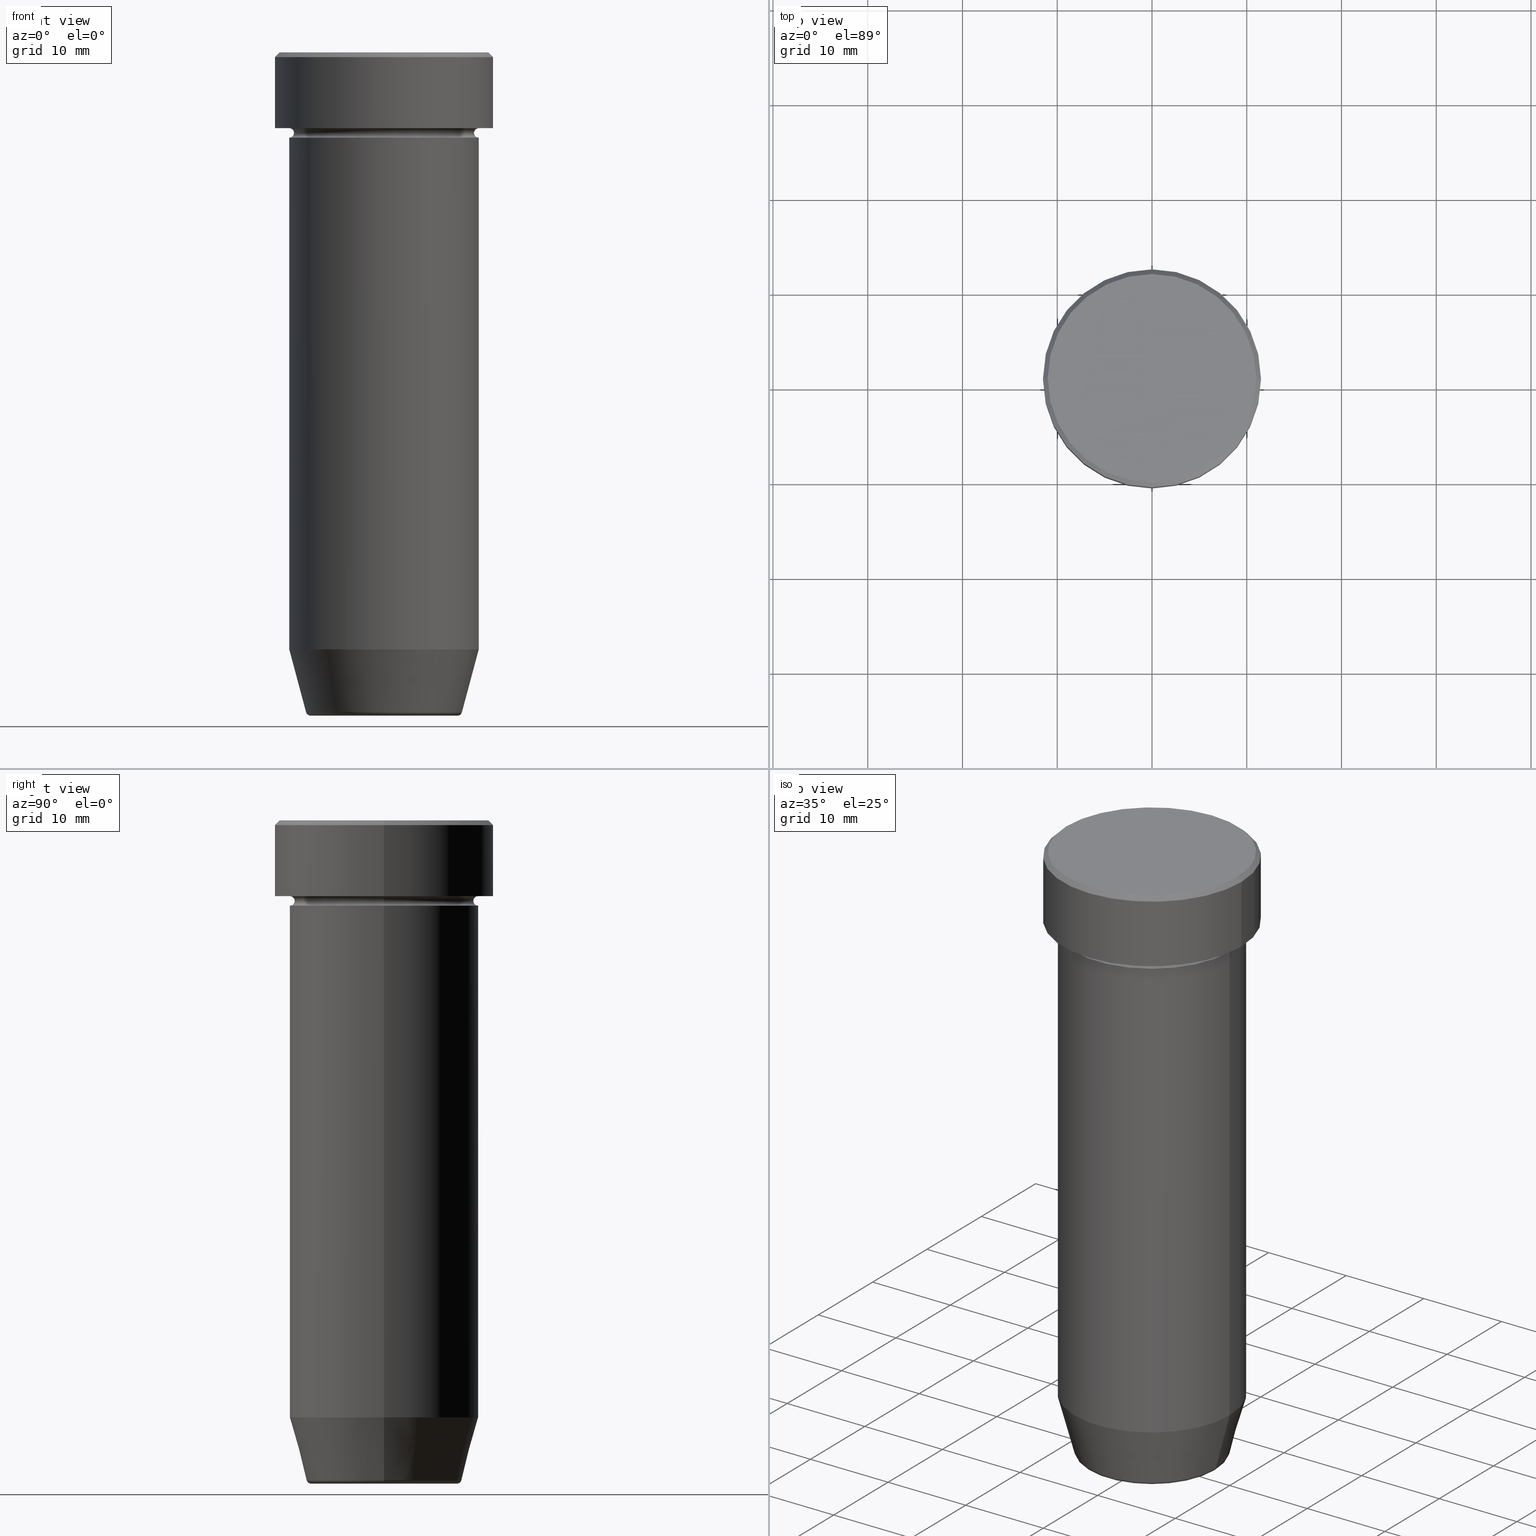
[diagram: canonical four-view strip — front | top / right | iso, engineering-drawing reading convention]
A machine part, canonical four-view strip (front | top / right | iso — engineering-drawing reading convention). The complete STEP part file that produces these views, byte-faithful:
ISO-10303-21;
HEADER;
FILE_DESCRIPTION (( 'STEP AP203' ),
    '1' );
FILE_NAME ('5f95.STEP',
    '2024-01-02T20:54:29',
    ( '' ),
    ( '' ),
    'SwSTEP 2.0',
    'SolidWorks 2019',
    '' );
FILE_SCHEMA (( 'CONFIG_CONTROL_DESIGN' ));
ENDSEC;

DATA;
#1 = ORIENTED_EDGE ( 'NONE', *, *, #95, .F. ) ;
#2 = FACE_OUTER_BOUND ( 'NONE', #146, .T. ) ;
#3 = ADVANCED_BREP_SHAPE_REPRESENTATION ( '5f95', ( #543, #132, #424 ), #329 ) ;
#4 = LINE ( 'NONE', #422, #78 ) ;
#5 = EDGE_CURVE ( 'NONE', #590, #84, #235, .T. ) ;
#6 = DIRECTION ( 'NONE',  ( -0.2588190451025214611, 3.169619151431774186E-17, 0.9659258262890679791 ) ) ;
#7 = VERTEX_POINT ( 'NONE', #190 ) ;
#8 =( NAMED_UNIT ( * ) PLANE_ANGLE_UNIT ( ) SI_UNIT ( $, .RADIAN. ) );
#9 = AXIS2_PLACEMENT_3D ( 'NONE', #441, #306, #312 ) ;
#10 = DIRECTION ( 'NONE',  ( 1.000000000000000000, 0.000000000000000000, 0.000000000000000000 ) ) ;
#11 = EDGE_LOOP ( 'NONE', ( #286, #245 ) ) ;
#12 = VECTOR ( 'NONE', #414, 1000.000000000000000 ) ;
#13 = CARTESIAN_POINT ( 'NONE',  ( -11.50000000000000000, 1.408343819019456176E-15, -0.5000000000000073275 ) ) ;
#14 = DIRECTION ( 'NONE',  ( -1.000000000000000000, 1.224646799147355426E-16, 0.000000000000000000 ) ) ;
#15 = ORIENTED_EDGE ( 'NONE', *, *, #5, .F. ) ;
#16 = CARTESIAN_POINT ( 'NONE',  ( 0.000000000000000000, 0.000000000000000000, -8.500000000000000000 ) ) ;
#17 = DIRECTION ( 'NONE',  ( 0.000000000000000000, 0.000000000000000000, -1.000000000000000000 ) ) ;
#18 = EDGE_LOOP ( 'NONE', ( #531, #405, #430, #513 ) ) ;
#19 = EDGE_CURVE ( 'NONE', #156, #31, #550, .T. ) ;
#20 = COORDINATED_UNIVERSAL_TIME_OFFSET ( 1, 0, .AHEAD. ) ;
#21 = CARTESIAN_POINT ( 'NONE',  ( -10.00000000000000000, 1.224646799147353256E-15, -9.000000000000001776 ) ) ;
#22 = ORIENTED_EDGE ( 'NONE', *, *, #249, .F. ) ;
#23 = APPROVAL ( #478, 'NEUR�EN�' ) ;
#24 = COORDINATED_UNIVERSAL_TIME_OFFSET ( 1, 0, .AHEAD. ) ;
#25 = DIRECTION ( 'NONE',  ( 1.000000000000000000, 0.000000000000000000, 0.000000000000000000 ) ) ;
#26 = ORIENTED_EDGE ( 'NONE', *, *, #496, .F. ) ;
#27 = EDGE_CURVE ( 'NONE', #464, #119, #145, .T. ) ;
#28 = PLANE ( 'NONE',  #371 ) ;
#29 = ORIENTED_EDGE ( 'NONE', *, *, #453, .T. ) ;
#30 = CARTESIAN_POINT ( 'NONE',  ( -8.223655072137185940, 1.115877042642911659E-15, -69.62940952255127058 ) ) ;
#31 = VERTEX_POINT ( 'NONE', #83 ) ;
#32 = AXIS2_PLACEMENT_3D ( 'NONE', #324, #319, #273 ) ;
#33 = CIRCLE ( 'NONE', #517, 11.00000000000000000 ) ;
#34 = DIRECTION ( 'NONE',  ( 1.000000000000000000, 0.000000000000000000, 0.000000000000000000 ) ) ;
#35 = VECTOR ( 'NONE', #276, 1000.000000000000000 ) ;
#36 = CARTESIAN_POINT ( 'NONE',  ( 10.00000000000000000, 0.000000000000000000, -8.500000000000000000 ) ) ;
#37 = ORIENTED_EDGE ( 'NONE', *, *, #437, .T. ) ;
#38 = ORIENTED_EDGE ( 'NONE', *, *, #27, .T. ) ;
#39 = ADVANCED_FACE ( 'NONE', ( #2 ), #126, .T. ) ;
#40 = CARTESIAN_POINT ( 'NONE',  ( -10.00000000000000000, 1.224646799147353256E-15, 0.000000000000000000 ) ) ;
#41 = AXIS2_PLACEMENT_3D ( 'NONE', #187, #127, #228 ) ;
#42 = DIRECTION ( 'NONE',  ( -0.000000000000000000, -0.000000000000000000, 1.000000000000000000 ) ) ;
#43 = ADVANCED_FACE ( 'NONE', ( #458 ), #427, .F. ) ;
#44 = DIRECTION ( 'NONE',  ( 1.000000000000000000, 0.000000000000000000, 0.000000000000000000 ) ) ;
#45 = CARTESIAN_POINT ( 'NONE',  ( 0.000000000000000000, 0.000000000000000000, -70.00000000000000000 ) ) ;
#46 = AXIS2_PLACEMENT_3D ( 'NONE', #165, #123, #401 ) ;
#47 = CIRCLE ( 'NONE', #41, 9.500000000000000000 ) ;
#48 = LINE ( 'NONE', #40, #12 ) ;
#49 = CARTESIAN_POINT ( 'NONE',  ( 0.000000000000000000, 0.000000000000000000, -8.000000000000000000 ) ) ;
#50 = EDGE_LOOP ( 'NONE', ( #162, #314, #568, #510 ) ) ;
#51 = LINE ( 'NONE', #509, #582 ) ;
#52 = ORIENTED_EDGE ( 'NONE', *, *, #593, .T. ) ;
#53 = LOCAL_TIME ( 21, 54, 29.00000000000000000, #354 ) ;
#54 = CIRCLE ( 'NONE', #471, 11.00000000000000000 ) ;
#55 = CARTESIAN_POINT ( 'NONE',  ( 8.223655072137185940, 0.000000000000000000, -69.62940952255127058 ) ) ;
#56 = ORIENTED_EDGE ( 'NONE', *, *, #224, .F. ) ;
#57 = CARTESIAN_POINT ( 'NONE',  ( 0.000000000000000000, 0.000000000000000000, -22.00000000000000000 ) ) ;
#58 = ADVANCED_FACE ( 'NONE', ( #553 ), #116, .T. ) ;
#59 = ORIENTED_EDGE ( 'NONE', *, *, #238, .F. ) ;
#60 = APPROVAL_STATUS ( 'not_yet_approved' ) ;
#61 = CARTESIAN_POINT ( 'NONE',  ( 0.000000000000000000, 2.449293598294708880E-15, -70.00000000000000000 ) ) ;
#62 = VERTEX_POINT ( 'NONE', #315 ) ;
#63 = CARTESIAN_POINT ( 'NONE',  ( 10.00000000000000000, 1.224646799147353256E-15, -8.000000000000000000 ) ) ;
#64 = LOCAL_TIME ( 21, 54, 29.00000000000000000, #24 ) ;
#65 = AXIS2_PLACEMENT_3D ( 'NONE', #268, #596, #180 ) ;
#66 = ORIENTED_EDGE ( 'NONE', *, *, #270, .T. ) ;
#67 = VECTOR ( 'NONE', #417, 1000.000000000000000 ) ;
#68 = APPROVAL ( #588, 'NEUR�EN�' ) ;
#69 = CARTESIAN_POINT ( 'NONE',  ( 0.000000000000000000, 0.000000000000000000, -0.5000000000000073275 ) ) ;
#70 = EDGE_LOOP ( 'NONE', ( #591, #105 ) ) ;
#71 = COORDINATED_UNIVERSAL_TIME_OFFSET ( 1, 0, .AHEAD. ) ;
#72 = PRODUCT_RELATED_PRODUCT_CATEGORY ( 'detail', '', ( #402 ) ) ;
#73 = CYLINDRICAL_SURFACE ( 'NONE', #569, 10.00000000000000000 ) ;
#74 = CIRCLE ( 'NONE', #500, 0.5000000000000004441 ) ;
#75 = ORIENTED_EDGE ( 'NONE', *, *, #19, .F. ) ;
#76 = DATE_AND_TIME ( #488, #53 ) ;
#77 = DIRECTION ( 'NONE',  ( -1.000000000000000000, 0.000000000000000000, 0.000000000000000000 ) ) ;
#78 = VECTOR ( 'NONE', #191, 1000.000000000000000 ) ;
#79 = CIRCLE ( 'NONE', #426, 8.223655072137185940 ) ;
#80 = DIRECTION ( 'NONE',  ( 1.000000000000000000, 0.000000000000000000, 0.000000000000000000 ) ) ;
#81 = ORIENTED_EDGE ( 'NONE', *, *, #87, .T. ) ;
#82 = EDGE_CURVE ( 'NONE', #119, #464, #456, .T. ) ;
#83 = CARTESIAN_POINT ( 'NONE',  ( -9.999999999999998224, 1.224646799147353059E-15, -63.00000000000000000 ) ) ;
#84 = VERTEX_POINT ( 'NONE', #452 ) ;
#85 = CC_DESIGN_APPROVAL ( #587, ( #527 ) ) ;
#86 = VECTOR ( 'NONE', #508, 1000.000000000000000 ) ;
#87 = EDGE_CURVE ( 'NONE', #590, #248, #321, .T. ) ;
#88 = CARTESIAN_POINT ( 'NONE',  ( 0.000000000000000000, 0.000000000000000000, -69.50000000000000000 ) ) ;
#89 = CARTESIAN_POINT ( 'NONE',  ( 0.000000000000000000, 0.000000000000000000, -63.00000000000000000 ) ) ;
#90 = DIRECTION ( 'NONE',  ( -1.000000000000000000, 0.000000000000000000, 0.000000000000000000 ) ) ;
#91 = CARTESIAN_POINT ( 'NONE',  ( 0.000000000000000000, 0.000000000000000000, -22.00000000000000000 ) ) ;
#92 = CONICAL_SURFACE ( 'NONE', #320, 11.00000000000000000, 0.7853981633974415066 ) ;
#93 = CARTESIAN_POINT ( 'NONE',  ( 0.000000000000000000, 0.000000000000000000, 0.000000000000000000 ) ) ;
#94 = CLOSED_SHELL ( 'NONE', ( #581, #481, #598, #429, #294, #129, #419, #141, #376, #39, #505, #43, #304 ) ) ;
#95 = EDGE_CURVE ( 'NONE', #156, #464, #229, .T. ) ;
#96 = CIRCLE ( 'NONE', #547, 7.740692158992650285 ) ;
#97 = CARTESIAN_POINT ( 'NONE',  ( -10.00000000000000000, 0.000000000000000000, -8.000000000000000000 ) ) ;
#98 = LINE ( 'NONE', #192, #540 ) ;
#99 = CC_DESIGN_DATE_AND_TIME_ASSIGNMENT ( #109, #296, ( #287 ) ) ;
#100 = FACE_OUTER_BOUND ( 'NONE', #395, .T. ) ;
#101 = ORIENTED_EDGE ( 'NONE', *, *, #316, .T. ) ;
#102 = EDGE_CURVE ( 'NONE', #444, #149, #48, .T. ) ;
#103 = CIRCLE ( 'NONE', #340, 11.50000000000000000 ) ;
#104 = DIRECTION ( 'NONE',  ( -0.000000000000000000, -0.000000000000000000, 1.000000000000000000 ) ) ;
#105 = ORIENTED_EDGE ( 'NONE', *, *, #233, .F. ) ;
#106 = DESIGN_CONTEXT ( 'detailed design', #388, 'design' ) ;
#107 = CYLINDRICAL_SURFACE ( 'NONE', #360, 11.50000000000000000 ) ;
#108 = ORIENTED_EDGE ( 'NONE', *, *, #437, .F. ) ;
#109 = DATE_AND_TIME ( #204, #416 ) ;
#110 = FACE_BOUND ( 'NONE', #386, .T. ) ;
#111 = ORIENTED_EDGE ( 'NONE', *, *, #361, .F. ) ;
#112 = EDGE_CURVE ( 'NONE', #240, #356, #96, .T. ) ;
#113 = DIRECTION ( 'NONE',  ( 1.000000000000000000, 0.000000000000000000, 0.000000000000000000 ) ) ;
#114 = CIRCLE ( 'NONE', #548, 0.4999999999999995559 ) ;
#115 = ORIENTED_EDGE ( 'NONE', *, *, #522, .F. ) ;
#116 = TOROIDAL_SURFACE ( 'NONE', #584, 7.740692158992650285, 0.5000000000000000000 ) ;
#117 = PERSON_AND_ORGANIZATION ( #575, #580 ) ;
#118 = CARTESIAN_POINT ( 'NONE',  ( 0.000000000000000000, 0.000000000000000000, 0.000000000000000000 ) ) ;
#119 = VERTEX_POINT ( 'NONE', #410 ) ;
#120 = CARTESIAN_POINT ( 'NONE',  ( 0.000000000000000000, 0.000000000000000000, -9.000000000000001776 ) ) ;
#121 = EDGE_LOOP ( 'NONE', ( #108, #197, #450, #345 ) ) ;
#122 = ADVANCED_FACE ( 'NONE', ( #138 ), #597, .T. ) ;
#123 = DIRECTION ( 'NONE',  ( -1.224646799147353207E-16, 1.000000000000000000, 0.000000000000000000 ) ) ;
#124 = ORIENTED_EDGE ( 'NONE', *, *, #150, .F. ) ;
#125 = CIRCLE ( 'NONE', #436, 10.00000000000000000 ) ;
#126 = CYLINDRICAL_SURFACE ( 'NONE', #472, 10.00000000000000000 ) ;
#127 = DIRECTION ( 'NONE',  ( -0.000000000000000000, -0.000000000000000000, 1.000000000000000000 ) ) ;
#128 = CARTESIAN_POINT ( 'NONE',  ( 0.000000000000000000, 0.000000000000000000, 0.000000000000000000 ) ) ;
#129 = ADVANCED_FACE ( 'NONE', ( #231 ), #325, .T. ) ;
#130 = FACE_OUTER_BOUND ( 'NONE', #487, .T. ) ;
#131 = DIRECTION ( 'NONE',  ( 0.000000000000000000, 0.000000000000000000, -1.000000000000000000 ) ) ;
#132 = MANIFOLD_SOLID_BREP ( 'Zaoblit4', #331 ) ;
#133 = APPROVAL_PERSON_ORGANIZATION ( #160, #23, #250 ) ;
#134 = AXIS2_PLACEMENT_3D ( 'NONE', #394, #158, #80 ) ;
#135 = CC_DESIGN_PERSON_AND_ORGANIZATION_ASSIGNMENT ( #529, #260, ( #527 ) ) ;
#136 = DIRECTION ( 'NONE',  ( 0.000000000000000000, 0.000000000000000000, -1.000000000000000000 ) ) ;
#137 = AXIS2_PLACEMENT_3D ( 'NONE', #373, #42, #549 ) ;
#138 = FACE_OUTER_BOUND ( 'NONE', #121, .T. ) ;
#139 = DIRECTION ( 'NONE',  ( -0.000000000000000000, -0.000000000000000000, 1.000000000000000000 ) ) ;
#140 = CARTESIAN_POINT ( 'NONE',  ( 11.50000000000000000, 0.000000000000000000, -8.000000000000000000 ) ) ;
#141 = ADVANCED_FACE ( 'NONE', ( #179 ), #545, .T. ) ;
#142 = DIRECTION ( 'NONE',  ( 0.000000000000000000, 0.000000000000000000, -1.000000000000000000 ) ) ;
#143 = AXIS2_PLACEMENT_3D ( 'NONE', #525, #391, #534 ) ;
#144 = CARTESIAN_POINT ( 'NONE',  ( 0.000000000000000000, 0.000000000000000000, -8.000000000000000000 ) ) ;
#145 = CIRCLE ( 'NONE', #483, 10.00000000000000000 ) ;
#146 = EDGE_LOOP ( 'NONE', ( #390, #418, #211, #494 ) ) ;
#147 =( LENGTH_UNIT ( ) NAMED_UNIT ( * ) SI_UNIT ( .MILLI., .METRE. ) );
#148 = DIRECTION ( 'NONE',  ( -0.000000000000000000, -0.000000000000000000, 1.000000000000000000 ) ) ;
#149 = VERTEX_POINT ( 'NONE', #21 ) ;
#150 = EDGE_CURVE ( 'NONE', #356, #240, #288, .T. ) ;
#151 = PLANE ( 'NONE',  #459 ) ;
#152 = ORIENTED_EDGE ( 'NONE', *, *, #349, .T. ) ;
#153 = CC_DESIGN_APPROVAL ( #23, ( #287 ) ) ;
#154 = CIRCLE ( 'NONE', #205, 10.00000000000000000 ) ;
#155 = DIRECTION ( 'NONE',  ( 0.000000000000000000, -1.000000000000000000, 0.000000000000000000 ) ) ;
#156 = VERTEX_POINT ( 'NONE', #431 ) ;
#157 = CARTESIAN_POINT ( 'NONE',  ( 0.000000000000000000, 0.000000000000000000, 0.000000000000000000 ) ) ;
#158 = DIRECTION ( 'NONE',  ( -0.000000000000000000, -0.000000000000000000, 1.000000000000000000 ) ) ;
#159 = ORIENTED_EDGE ( 'NONE', *, *, #224, .T. ) ;
#160 = PERSON_AND_ORGANIZATION ( #575, #580 ) ;
#161 = DIRECTION ( 'NONE',  ( -0.000000000000000000, -0.000000000000000000, 1.000000000000000000 ) ) ;
#162 = ORIENTED_EDGE ( 'NONE', *, *, #209, .F. ) ;
#163 = DIRECTION ( 'NONE',  ( 0.000000000000000000, 0.000000000000000000, 1.000000000000000000 ) ) ;
#164 = VECTOR ( 'NONE', #326, 1000.000000000000114 ) ;
#165 = CARTESIAN_POINT ( 'NONE',  ( 10.00000000000000000, 1.224646799147353256E-15, -8.500000000000000000 ) ) ;
#166 = CC_DESIGN_SECURITY_CLASSIFICATION ( #287, ( #527 ) ) ;
#167 = AXIS2_PLACEMENT_3D ( 'NONE', #120, #310, #585 ) ;
#168 = ORIENTED_EDGE ( 'NONE', *, *, #172, .T. ) ;
#169 = APPLICATION_PROTOCOL_DEFINITION ( 'international standard', 'config_control_design', 1994, #388 ) ;
#170 = DIRECTION ( 'NONE',  ( 1.000000000000000000, 0.000000000000000000, 0.000000000000000000 ) ) ;
#171 = EDGE_LOOP ( 'NONE', ( #334, #366, #26, #255 ) ) ;
#172 = EDGE_CURVE ( 'NONE', #336, #31, #564, .T. ) ;
#173 = DIRECTION ( 'NONE',  ( 0.000000000000000000, 0.000000000000000000, -1.000000000000000000 ) ) ;
#174 = ORIENTED_EDGE ( 'NONE', *, *, #453, .F. ) ;
#175 = DIRECTION ( 'NONE',  ( -0.000000000000000000, -0.000000000000000000, 1.000000000000000000 ) ) ;
#176 = VERTEX_POINT ( 'NONE', #55 ) ;
#177 = DIRECTION ( 'NONE',  ( 1.224646799147353207E-16, 1.000000000000000000, 0.000000000000000000 ) ) ;
#178 = PRODUCT_DEFINITION ( 'NEZN�M�', '', #527, #106 ) ;
#179 = FACE_OUTER_BOUND ( 'NONE', #491, .T. ) ;
#180 = DIRECTION ( 'NONE',  ( 1.000000000000000000, 0.000000000000000000, 0.000000000000000000 ) ) ;
#181 = CARTESIAN_POINT ( 'NONE',  ( 11.50000000000000000, 0.000000000000000000, 0.000000000000000000 ) ) ;
#182 = SHAPE_DEFINITION_REPRESENTATION ( #308, #3 ) ;
#183 = CARTESIAN_POINT ( 'NONE',  ( 0.000000000000000000, 0.000000000000000000, 0.000000000000000000 ) ) ;
#184 = DIRECTION ( 'NONE',  ( -0.000000000000000000, -0.000000000000000000, 1.000000000000000000 ) ) ;
#185 = LOCAL_TIME ( 21, 54, 29.00000000000000000, #524 ) ;
#186 = AXIS2_PLACEMENT_3D ( 'NONE', #206, #173, #449 ) ;
#187 = CARTESIAN_POINT ( 'NONE',  ( 0.000000000000000000, 0.000000000000000000, -8.500000000000000000 ) ) ;
#188 = DIRECTION ( 'NONE',  ( -0.000000000000000000, -0.000000000000000000, 1.000000000000000000 ) ) ;
#189 = ADVANCED_FACE ( 'NONE', ( #434 ), #151, .F. ) ;
#190 = CARTESIAN_POINT ( 'NONE',  ( 10.00000000000000000, 0.000000000000000000, -22.00000000000000000 ) ) ;
#191 = DIRECTION ( 'NONE',  ( -0.000000000000000000, -0.000000000000000000, 1.000000000000000000 ) ) ;
#192 = CARTESIAN_POINT ( 'NONE',  ( -11.50000000000000000, 1.408343819019456176E-15, 0.000000000000000000 ) ) ;
#193 = AXIS2_PLACEMENT_3D ( 'NONE', #16, #284, #465 ) ;
#194 = CIRCLE ( 'NONE', #301, 10.00000000000000000 ) ;
#195 = FACE_OUTER_BOUND ( 'NONE', #379, .T. ) ;
#196 = EDGE_CURVE ( 'NONE', #248, #572, #98, .T. ) ;
#197 = ORIENTED_EDGE ( 'NONE', *, *, #328, .T. ) ;
#198 = FACE_OUTER_BOUND ( 'NONE', #253, .T. ) ;
#199 = LINE ( 'NONE', #239, #86 ) ;
#200 = EDGE_LOOP ( 'NONE', ( #115, #470, #339, #425 ) ) ;
#201 = PLANE ( 'NONE',  #556 ) ;
#202 = EDGE_LOOP ( 'NONE', ( #22, #111, #159, #526 ) ) ;
#203 = CC_DESIGN_APPROVAL ( #68, ( #178 ) ) ;
#204 = CALENDAR_DATE ( 2024, 2, 1 ) ;
#205 = AXIS2_PLACEMENT_3D ( 'NONE', #252, #521, #302 ) ;
#206 = CARTESIAN_POINT ( 'NONE',  ( 0.000000000000000000, 0.000000000000000000, -0.5000000000000073275 ) ) ;
#207 = ORIENTED_EDGE ( 'NONE', *, *, #367, .F. ) ;
#208 = PERSON_AND_ORGANIZATION ( #575, #580 ) ;
#209 = EDGE_CURVE ( 'NONE', #356, #336, #114, .T. ) ;
#210 = FACE_OUTER_BOUND ( 'NONE', #171, .T. ) ;
#211 = ORIENTED_EDGE ( 'NONE', *, *, #570, .T. ) ;
#212 = CC_DESIGN_PERSON_AND_ORGANIZATION_ASSIGNMENT ( #305, #520, ( #287 ) ) ;
#213 = DIRECTION ( 'NONE',  ( -0.000000000000000000, -0.000000000000000000, 1.000000000000000000 ) ) ;
#214 = EDGE_LOOP ( 'NONE', ( #559, #579, #562, #403 ) ) ;
#215 = PERSON_AND_ORGANIZATION ( #575, #580 ) ;
#216 = UNCERTAINTY_MEASURE_WITH_UNIT (LENGTH_MEASURE( 1.000000000000000082E-05 ), #147, 'distance_accuracy_value', 'NONE');
#217 = CARTESIAN_POINT ( 'NONE',  ( -10.00000000000000000, 1.224646799147353256E-15, -22.00000000000000000 ) ) ;
#218 = CIRCLE ( 'NONE', #143, 0.5000000000000004441 ) ;
#219 = ORIENTED_EDGE ( 'NONE', *, *, #150, .T. ) ;
#220 = EDGE_CURVE ( 'NONE', #7, #444, #194, .T. ) ;
#221 = DATE_AND_TIME ( #357, #185 ) ;
#222 = ORIENTED_EDGE ( 'NONE', *, *, #249, .T. ) ;
#223 = DIRECTION ( 'NONE',  ( -0.000000000000000000, -0.000000000000000000, 1.000000000000000000 ) ) ;
#224 = EDGE_CURVE ( 'NONE', #62, #572, #199, .T. ) ;
#225 = DIRECTION ( 'NONE',  ( 1.000000000000000000, 0.000000000000000000, 0.000000000000000000 ) ) ;
#226 = AXIS2_PLACEMENT_3D ( 'NONE', #36, #589, #544 ) ;
#227 = AXIS2_PLACEMENT_3D ( 'NONE', #451, #175, #365 ) ;
#228 = DIRECTION ( 'NONE',  ( 1.000000000000000000, 0.000000000000000000, 0.000000000000000000 ) ) ;
#229 = LINE ( 'NONE', #269, #35 ) ;
#230 = CARTESIAN_POINT ( 'NONE',  ( 0.000000000000000000, 0.000000000000000000, -8.500000000000000000 ) ) ;
#231 = FACE_OUTER_BOUND ( 'NONE', #70, .T. ) ;
#232 = AXIS2_PLACEMENT_3D ( 'NONE', #506, #461, #595 ) ;
#233 = EDGE_CURVE ( 'NONE', #444, #7, #272, .T. ) ;
#234 = VECTOR ( 'NONE', #443, 1000.000000000000000 ) ;
#235 = LINE ( 'NONE', #181, #67 ) ;
#236 = DIRECTION ( 'NONE',  ( -0.000000000000000000, -0.000000000000000000, 1.000000000000000000 ) ) ;
#237 = VERTEX_POINT ( 'NONE', #423 ) ;
#238 = EDGE_CURVE ( 'NONE', #240, #176, #277, .T. ) ;
#239 = CARTESIAN_POINT ( 'NONE',  ( -11.00000000000000000, 0.000000000000000000, 0.000000000000000000 ) ) ;
#240 = VERTEX_POINT ( 'NONE', #377 ) ;
#241 = TOROIDAL_SURFACE ( 'NONE', #134, 7.740692158992650285, 0.5000000000000000000 ) ;
#242 = DIRECTION ( 'NONE',  ( -1.000000000000000000, 0.000000000000000000, -0.000000000000000000 ) ) ;
#243 = ORIENTED_EDGE ( 'NONE', *, *, #342, .T. ) ;
#244 = DIRECTION ( 'NONE',  ( 0.000000000000000000, 0.000000000000000000, -1.000000000000000000 ) ) ;
#245 = ORIENTED_EDGE ( 'NONE', *, *, #387, .T. ) ;
#246 = APPROVAL_DATE_TIME ( #76, #587 ) ;
#247 = FACE_OUTER_BOUND ( 'NONE', #467, .T. ) ;
#248 = VERTEX_POINT ( 'NONE', #382 ) ;
#249 = EDGE_CURVE ( 'NONE', #311, #84, #51, .T. ) ;
#250 = APPROVAL_ROLE ( '' ) ;
#251 = CIRCLE ( 'NONE', #167, 10.00000000000000000 ) ;
#252 = CARTESIAN_POINT ( 'NONE',  ( 0.000000000000000000, 0.000000000000000000, -8.000000000000000000 ) ) ;
#253 = EDGE_LOOP ( 'NONE', ( #442, #222, #415, #56 ) ) ;
#254 = CARTESIAN_POINT ( 'NONE',  ( -7.740692158992650285, 9.775343368540031246E-16, -70.00000000000000000 ) ) ;
#255 = ORIENTED_EDGE ( 'NONE', *, *, #570, .F. ) ;
#256 = APPROVAL_ROLE ( '' ) ;
#257 = ADVANCED_FACE ( 'NONE', ( #473 ), #201, .F. ) ;
#258 = CARTESIAN_POINT ( 'NONE',  ( 0.000000000000000000, 0.000000000000000000, 0.000000000000000000 ) ) ;
#259 = ORIENTED_EDGE ( 'NONE', *, *, #413, .T. ) ;
#260 = PERSON_AND_ORGANIZATION_ROLE ( 'creator' ) ;
#261 = VECTOR ( 'NONE', #6, 1000.000000000000114 ) ;
#262 = DIRECTION ( 'NONE',  ( -0.000000000000000000, -0.000000000000000000, 1.000000000000000000 ) ) ;
#263 = AXIS2_PLACEMENT_3D ( 'NONE', #69, #438, #170 ) ;
#264 = ORIENTED_EDGE ( 'NONE', *, *, #270, .F. ) ;
#265 = CIRCLE ( 'NONE', #227, 9.500000000000000000 ) ;
#266 = DIRECTION ( 'NONE',  ( 1.000000000000000000, 0.000000000000000000, 0.000000000000000000 ) ) ;
#267 = ORIENTED_EDGE ( 'NONE', *, *, #87, .F. ) ;
#268 = CARTESIAN_POINT ( 'NONE',  ( 0.000000000000000000, 0.000000000000000000, -8.500000000000000000 ) ) ;
#269 = CARTESIAN_POINT ( 'NONE',  ( 9.999999999999998224, 0.000000000000000000, 0.000000000000000000 ) ) ;
#270 = EDGE_CURVE ( 'NONE', #248, #590, #103, .T. ) ;
#271 = DIRECTION ( 'NONE',  ( -0.000000000000000000, -0.000000000000000000, 1.000000000000000000 ) ) ;
#272 = CIRCLE ( 'NONE', #501, 10.00000000000000000 ) ;
#273 = DIRECTION ( 'NONE',  ( 1.000000000000000000, 0.000000000000000000, 0.000000000000000000 ) ) ;
#274 = ADVANCED_FACE ( 'NONE', ( #195 ), #409, .T. ) ;
#275 = CYLINDRICAL_SURFACE ( 'NONE', #460, 9.999999999999998224 ) ;
#276 = DIRECTION ( 'NONE',  ( -0.000000000000000000, -0.000000000000000000, 1.000000000000000000 ) ) ;
#277 = CIRCLE ( 'NONE', #313, 0.5000000000000004441 ) ;
#278 = CARTESIAN_POINT ( 'NONE',  ( 11.00000000000000000, 1.377727649040772389E-15, 0.000000000000000000 ) ) ;
#279 = EDGE_LOOP ( 'NONE', ( #38, #565 ) ) ;
#280 = CC_DESIGN_PERSON_AND_ORGANIZATION_ASSIGNMENT ( #215, #536, ( #402 ) ) ;
#281 = CARTESIAN_POINT ( 'NONE',  ( 0.000000000000000000, 0.000000000000000000, 0.000000000000000000 ) ) ;
#282 = CARTESIAN_POINT ( 'NONE',  ( -8.124355652982131915, 9.949466145559272639E-16, -70.00000000000000000 ) ) ;
#283 = ORIENTED_EDGE ( 'NONE', *, *, #196, .F. ) ;
#284 = DIRECTION ( 'NONE',  ( -0.000000000000000000, -0.000000000000000000, 1.000000000000000000 ) ) ;
#285 = DIRECTION ( 'NONE',  ( 0.000000000000000000, 0.000000000000000000, -1.000000000000000000 ) ) ;
#286 = ORIENTED_EDGE ( 'NONE', *, *, #361, .T. ) ;
#287 = SECURITY_CLASSIFICATION ( '', '', #482 ) ;
#288 = CIRCLE ( 'NONE', #515, 7.740692158992650285 ) ;
#289 = CIRCLE ( 'NONE', #186, 11.50000000000000000 ) ;
#290 = DIRECTION ( 'NONE',  ( 0.7071067811865426878, 8.659560562354874926E-17, -0.7071067811865524577 ) ) ;
#291 = AXIS2_PLACEMENT_3D ( 'NONE', #455, #184, #546 ) ;
#292 = ORIENTED_EDGE ( 'NONE', *, *, #209, .T. ) ;
#293 = DIRECTION ( 'NONE',  ( -0.000000000000000000, -0.000000000000000000, 1.000000000000000000 ) ) ;
#294 = ADVANCED_FACE ( 'NONE', ( #247 ), #107, .T. ) ;
#295 = ORIENTED_EDGE ( 'NONE', *, *, #413, .F. ) ;
#296 = DATE_TIME_ROLE ( 'classification_date' ) ;
#297 = PLANE ( 'NONE',  #9 ) ;
#298 = ORIENTED_EDGE ( 'NONE', *, *, #393, .T. ) ;
#299 = APPROVAL_PERSON_ORGANIZATION ( #440, #587, #256 ) ;
#300 = PERSON_AND_ORGANIZATION ( #575, #580 ) ;
#301 = AXIS2_PLACEMENT_3D ( 'NONE', #57, #293, #374 ) ;
#302 = DIRECTION ( 'NONE',  ( -1.000000000000000000, 0.000000000000000000, 0.000000000000000000 ) ) ;
#303 = EDGE_LOOP ( 'NONE', ( #307, #219 ) ) ;
#304 = ADVANCED_FACE ( 'NONE', ( #335 ), #92, .T. ) ;
#305 = PERSON_AND_ORGANIZATION ( #575, #580 ) ;
#306 = DIRECTION ( 'NONE',  ( 0.000000000000000000, 0.000000000000000000, -1.000000000000000000 ) ) ;
#307 = ORIENTED_EDGE ( 'NONE', *, *, #112, .T. ) ;
#308 = PRODUCT_DEFINITION_SHAPE ( 'NONE', 'NONE',  #178 ) ;
#309 = APPROVAL_DATE_TIME ( #583, #68 ) ;
#310 = DIRECTION ( 'NONE',  ( -0.000000000000000000, -0.000000000000000000, 1.000000000000000000 ) ) ;
#311 = VERTEX_POINT ( 'NONE', #278 ) ;
#312 = DIRECTION ( 'NONE',  ( -1.000000000000000000, 0.000000000000000000, -0.000000000000000000 ) ) ;
#313 = AXIS2_PLACEMENT_3D ( 'NONE', #463, #155, #17 ) ;
#314 = ORIENTED_EDGE ( 'NONE', *, *, #112, .F. ) ;
#315 = CARTESIAN_POINT ( 'NONE',  ( -11.00000000000000000, 0.000000000000000000, 0.000000000000000000 ) ) ;
#316 = EDGE_CURVE ( 'NONE', #362, #576, #380, .T. ) ;
#317 = DIRECTION ( 'NONE',  ( -0.000000000000000000, -0.000000000000000000, 1.000000000000000000 ) ) ;
#318 = APPROVAL_PERSON_ORGANIZATION ( #300, #68, #577 ) ;
#319 = DIRECTION ( 'NONE',  ( -0.000000000000000000, -0.000000000000000000, 1.000000000000000000 ) ) ;
#320 = AXIS2_PLACEMENT_3D ( 'NONE', #93, #142, #327 ) ;
#321 = CIRCLE ( 'NONE', #137, 11.50000000000000000 ) ;
#322 = ADVANCED_FACE ( 'NONE', ( #100 ), #241, .T. ) ;
#323 = CARTESIAN_POINT ( 'NONE',  ( 0.000000000000000000, 0.000000000000000000, -9.000000000000001776 ) ) ;
#324 = CARTESIAN_POINT ( 'NONE',  ( 0.000000000000000000, 0.000000000000000000, 0.000000000000000000 ) ) ;
#325 = PLANE ( 'NONE',  #232 ) ;
#326 = DIRECTION ( 'NONE',  ( 0.2588190451025214611, 0.000000000000000000, 0.9659258262890679791 ) ) ;
#327 = DIRECTION ( 'NONE',  ( -1.000000000000000000, 0.000000000000000000, 0.000000000000000000 ) ) ;
#328 = EDGE_CURVE ( 'NONE', #31, #156, #446, .T. ) ;
#329 =( GEOMETRIC_REPRESENTATION_CONTEXT ( 3 ) GLOBAL_UNCERTAINTY_ASSIGNED_CONTEXT ( ( #216 ) ) GLOBAL_UNIT_ASSIGNED_CONTEXT ( ( #147, #8, #563 ) ) REPRESENTATION_CONTEXT ( 'NONE', 'WORKASPACE' ) );
#330 = TOROIDAL_SURFACE ( 'NONE', #65, 10.00000000000000000, 0.5000000000000000000 ) ;
#331 = CLOSED_SHELL ( 'NONE', ( #322, #274, #489, #189, #122, #551, #257, #58 ) ) ;
#332 = FACE_OUTER_BOUND ( 'NONE', #535, .T. ) ;
#333 = DIRECTION ( 'NONE',  ( -0.000000000000000000, -0.000000000000000000, 1.000000000000000000 ) ) ;
#334 = ORIENTED_EDGE ( 'NONE', *, *, #220, .T. ) ;
#335 = FACE_OUTER_BOUND ( 'NONE', #202, .T. ) ;
#336 = VERTEX_POINT ( 'NONE', #30 ) ;
#337 = DIRECTION ( 'NONE',  ( -0.000000000000000000, -0.000000000000000000, 1.000000000000000000 ) ) ;
#338 = CARTESIAN_POINT ( 'NONE',  ( 0.000000000000000000, 0.000000000000000000, -22.00000000000000000 ) ) ;
#339 = ORIENTED_EDGE ( 'NONE', *, *, #448, .T. ) ;
#340 = AXIS2_PLACEMENT_3D ( 'NONE', #144, #389, #10 ) ;
#341 = CARTESIAN_POINT ( 'NONE',  ( 0.000000000000000000, 0.000000000000000000, -70.00000000000000000 ) ) ;
#342 = EDGE_CURVE ( 'NONE', #572, #84, #454, .T. ) ;
#343 = DIRECTION ( 'NONE',  ( 1.000000000000000000, 0.000000000000000000, 0.000000000000000000 ) ) ;
#344 = DIRECTION ( 'NONE',  ( -0.000000000000000000, -0.000000000000000000, 1.000000000000000000 ) ) ;
#345 = ORIENTED_EDGE ( 'NONE', *, *, #82, .F. ) ;
#346 = APPLICATION_CONTEXT ( 'configuration controlled 3d designs of mechanical parts and assemblies' ) ;
#347 = DATE_AND_TIME ( #392, #64 ) ;
#348 = CARTESIAN_POINT ( 'NONE',  ( 0.000000000000000000, 0.000000000000000000, 0.000000000000000000 ) ) ;
#349 = EDGE_CURVE ( 'NONE', #84, #572, #289, .T. ) ;
#350 = TOROIDAL_SURFACE ( 'NONE', #193, 10.00000000000000000, 0.5000000000000000000 ) ;
#351 = PERSON_AND_ORGANIZATION_ROLE ( 'creator' ) ;
#352 = AXIS2_PLACEMENT_3D ( 'NONE', #490, #262, #447 ) ;
#353 = CARTESIAN_POINT ( 'NONE',  ( 10.00000000000000000, 0.000000000000000000, -9.000000000000001776 ) ) ;
#354 = COORDINATED_UNIVERSAL_TIME_OFFSET ( 1, 0, .AHEAD. ) ;
#355 = FACE_OUTER_BOUND ( 'NONE', #11, .T. ) ;
#356 = VERTEX_POINT ( 'NONE', #254 ) ;
#357 = CALENDAR_DATE ( 2024, 2, 1 ) ;
#358 = DIRECTION ( 'NONE',  ( -0.000000000000000000, -0.000000000000000000, 1.000000000000000000 ) ) ;
#359 = EDGE_LOOP ( 'NONE', ( #539, #298, #295, #207 ) ) ;
#360 = AXIS2_PLACEMENT_3D ( 'NONE', #476, #561, #554 ) ;
#361 = EDGE_CURVE ( 'NONE', #62, #311, #54, .T. ) ;
#362 = VERTEX_POINT ( 'NONE', #63 ) ;
#363 = DIRECTION ( 'NONE',  ( -1.000000000000000000, 1.224646799147353454E-16, 0.000000000000000000 ) ) ;
#364 = DIRECTION ( 'NONE',  ( 1.000000000000000000, 0.000000000000000000, 0.000000000000000000 ) ) ;
#365 = DIRECTION ( 'NONE',  ( 1.000000000000000000, 0.000000000000000000, 0.000000000000000000 ) ) ;
#366 = ORIENTED_EDGE ( 'NONE', *, *, #102, .T. ) ;
#367 = EDGE_CURVE ( 'NONE', #237, #576, #218, .T. ) ;
#368 = CARTESIAN_POINT ( 'NONE',  ( 10.00000000000000000, 0.000000000000000000, -22.00000000000000000 ) ) ;
#369 = AXIS2_PLACEMENT_3D ( 'NONE', #128, #317, #498 ) ;
#370 = DIRECTION ( 'NONE',  ( -1.000000000000000000, 0.000000000000000000, 0.000000000000000000 ) ) ;
#371 = AXIS2_PLACEMENT_3D ( 'NONE', #404, #493, #25 ) ;
#372 = DIRECTION ( 'NONE',  ( 1.000000000000000000, 0.000000000000000000, 0.000000000000000000 ) ) ;
#373 = CARTESIAN_POINT ( 'NONE',  ( 0.000000000000000000, 0.000000000000000000, -8.000000000000000000 ) ) ;
#374 = DIRECTION ( 'NONE',  ( 1.000000000000000000, 0.000000000000000000, 0.000000000000000000 ) ) ;
#375 = DIRECTION ( 'NONE',  ( 0.000000000000000000, 0.000000000000000000, -1.000000000000000000 ) ) ;
#376 = ADVANCED_FACE ( 'NONE', ( #110, #484 ), #297, .T. ) ;
#377 = CARTESIAN_POINT ( 'NONE',  ( 7.740692158992650285, 0.000000000000000000, -70.00000000000000000 ) ) ;
#378 = AXIS2_PLACEMENT_3D ( 'NONE', #281, #375, #384 ) ;
#379 = EDGE_LOOP ( 'NONE', ( #29, #168, #75, #474 ) ) ;
#380 = CIRCLE ( 'NONE', #400, 10.00000000000000000 ) ;
#381 = AXIS2_PLACEMENT_3D ( 'NONE', #230, #495, #370 ) ;
#382 = CARTESIAN_POINT ( 'NONE',  ( -11.50000000000000000, 1.408343819019456176E-15, -8.000000000000000000 ) ) ;
#383 = VERTEX_POINT ( 'NONE', #479 ) ;
#384 = DIRECTION ( 'NONE',  ( -1.000000000000000000, 0.000000000000000000, 0.000000000000000000 ) ) ;
#385 = DIRECTION ( 'NONE',  ( 1.000000000000000000, 0.000000000000000000, 0.000000000000000000 ) ) ;
#386 = EDGE_LOOP ( 'NONE', ( #259, #101 ) ) ;
#387 = EDGE_CURVE ( 'NONE', #311, #62, #33, .T. ) ;
#388 = APPLICATION_CONTEXT ( 'configuration controlled 3d designs of mechanical parts and assemblies' ) ;
#389 = DIRECTION ( 'NONE',  ( -0.000000000000000000, -0.000000000000000000, 1.000000000000000000 ) ) ;
#390 = ORIENTED_EDGE ( 'NONE', *, *, #102, .F. ) ;
#391 = DIRECTION ( 'NONE',  ( -0.000000000000000000, -1.000000000000000000, -0.000000000000000000 ) ) ;
#392 = CALENDAR_DATE ( 2024, 2, 1 ) ;
#393 = EDGE_CURVE ( 'NONE', #383, #362, #599, .T. ) ;
#394 = CARTESIAN_POINT ( 'NONE',  ( 0.000000000000000000, 0.000000000000000000, -69.50000000000000000 ) ) ;
#395 = EDGE_LOOP ( 'NONE', ( #124, #292, #174, #59 ) ) ;
#396 = MECHANICAL_CONTEXT ( 'NONE', #346, 'mechanical' ) ;
#397 = DIRECTION ( 'NONE',  ( 1.000000000000000000, 0.000000000000000000, 0.000000000000000000 ) ) ;
#398 = EDGE_LOOP ( 'NONE', ( #267, #264 ) ) ;
#399 = AXIS2_PLACEMENT_3D ( 'NONE', #341, #337, #420 ) ;
#400 = AXIS2_PLACEMENT_3D ( 'NONE', #49, #236, #421 ) ;
#401 = DIRECTION ( 'NONE',  ( -1.000000000000000000, -1.224646799147353454E-16, 0.000000000000000000 ) ) ;
#402 = PRODUCT ( '5f95', '5f95', '', ( #396 ) ) ;
#403 = ORIENTED_EDGE ( 'NONE', *, *, #316, .F. ) ;
#404 = CARTESIAN_POINT ( 'NONE',  ( 0.000000000000000000, 0.000000000000000000, 0.000000000000000000 ) ) ;
#405 = ORIENTED_EDGE ( 'NONE', *, *, #468, .F. ) ;
#406 = EDGE_CURVE ( 'NONE', #336, #176, #79, .T. ) ;
#407 = FACE_OUTER_BOUND ( 'NONE', #18, .T. ) ;
#408 = VERTEX_POINT ( 'NONE', #353 ) ;
#409 = CONICAL_SURFACE ( 'NONE', #492, 8.124355652982131915, 0.2617993877991502405 ) ;
#410 = CARTESIAN_POINT ( 'NONE',  ( -10.00000000000000000, 1.224646799147353256E-15, -22.00000000000000000 ) ) ;
#411 = AXIS2_PLACEMENT_3D ( 'NONE', #89, #457, #44 ) ;
#412 = FACE_OUTER_BOUND ( 'NONE', #359, .T. ) ;
#413 = EDGE_CURVE ( 'NONE', #576, #362, #154, .T. ) ;
#414 = DIRECTION ( 'NONE',  ( -0.000000000000000000, -0.000000000000000000, 1.000000000000000000 ) ) ;
#415 = ORIENTED_EDGE ( 'NONE', *, *, #342, .F. ) ;
#416 = LOCAL_TIME ( 21, 54, 29.00000000000000000, #20 ) ;
#417 = DIRECTION ( 'NONE',  ( -0.000000000000000000, -0.000000000000000000, 1.000000000000000000 ) ) ;
#418 = ORIENTED_EDGE ( 'NONE', *, *, #233, .T. ) ;
#419 = ADVANCED_FACE ( 'NONE', ( #355 ), #28, .T. ) ;
#420 = DIRECTION ( 'NONE',  ( 1.000000000000000000, 0.000000000000000000, 0.000000000000000000 ) ) ;
#421 = DIRECTION ( 'NONE',  ( -1.000000000000000000, 0.000000000000000000, 0.000000000000000000 ) ) ;
#422 = CARTESIAN_POINT ( 'NONE',  ( 10.00000000000000000, 0.000000000000000000, 0.000000000000000000 ) ) ;
#423 = CARTESIAN_POINT ( 'NONE',  ( -9.500000000000000000, 1.194030629168669469E-15, -8.500000000000000000 ) ) ;
#424 = AXIS2_PLACEMENT_3D ( 'NONE', #157, #163, #34 ) ;
#425 = ORIENTED_EDGE ( 'NONE', *, *, #462, .F. ) ;
#426 = AXIS2_PLACEMENT_3D ( 'NONE', #571, #344, #77 ) ;
#427 = TOROIDAL_SURFACE ( 'NONE', #381, 10.00000000000000000, 0.5000000000000000000 ) ;
#428 = DIRECTION ( 'NONE',  ( 1.224646799147353207E-16, 1.000000000000000000, 0.000000000000000000 ) ) ;
#429 = ADVANCED_FACE ( 'NONE', ( #210 ), #73, .T. ) ;
#430 = ORIENTED_EDGE ( 'NONE', *, *, #462, .T. ) ;
#431 = CARTESIAN_POINT ( 'NONE',  ( 9.999999999999998224, 0.000000000000000000, -63.00000000000000000 ) ) ;
#432 = ORIENTED_EDGE ( 'NONE', *, *, #19, .T. ) ;
#433 = PERSON_AND_ORGANIZATION_ROLE ( 'design_supplier' ) ;
#434 = FACE_OUTER_BOUND ( 'NONE', #279, .T. ) ;
#435 = LOCAL_TIME ( 21, 54, 29.00000000000000000, #71 ) ;
#436 = AXIS2_PLACEMENT_3D ( 'NONE', #323, #497, #552 ) ;
#437 = EDGE_CURVE ( 'NONE', #31, #119, #578, .T. ) ;
#438 = DIRECTION ( 'NONE',  ( 0.000000000000000000, 0.000000000000000000, -1.000000000000000000 ) ) ;
#439 = ORIENTED_EDGE ( 'NONE', *, *, #172, .F. ) ;
#440 = PERSON_AND_ORGANIZATION ( #575, #580 ) ;
#441 = CARTESIAN_POINT ( 'NONE',  ( 0.000000000000000000, 11.50000000000000000, -8.000000000000000000 ) ) ;
#442 = ORIENTED_EDGE ( 'NONE', *, *, #387, .F. ) ;
#443 = DIRECTION ( 'NONE',  ( -0.000000000000000000, -0.000000000000000000, 1.000000000000000000 ) ) ;
#444 = VERTEX_POINT ( 'NONE', #217 ) ;
#445 = APPLICATION_PROTOCOL_DEFINITION ( 'international standard', 'config_control_design', 1994, #346 ) ;
#446 = CIRCLE ( 'NONE', #528, 9.999999999999998224 ) ;
#447 = DIRECTION ( 'NONE',  ( -1.000000000000000000, 0.000000000000000000, 0.000000000000000000 ) ) ;
#448 = EDGE_CURVE ( 'NONE', #149, #408, #251, .T. ) ;
#449 = DIRECTION ( 'NONE',  ( 1.000000000000000000, 0.000000000000000000, 0.000000000000000000 ) ) ;
#450 = ORIENTED_EDGE ( 'NONE', *, *, #95, .T. ) ;
#451 = CARTESIAN_POINT ( 'NONE',  ( 0.000000000000000000, 0.000000000000000000, -8.500000000000000000 ) ) ;
#452 = CARTESIAN_POINT ( 'NONE',  ( 11.50000000000000000, 0.000000000000000000, -0.5000000000000073275 ) ) ;
#453 = EDGE_CURVE ( 'NONE', #176, #336, #507, .T. ) ;
#454 = CIRCLE ( 'NONE', #263, 11.50000000000000000 ) ;
#455 = CARTESIAN_POINT ( 'NONE',  ( 0.000000000000000000, 0.000000000000000000, -22.00000000000000000 ) ) ;
#456 = CIRCLE ( 'NONE', #291, 10.00000000000000000 ) ;
#457 = DIRECTION ( 'NONE',  ( -0.000000000000000000, -0.000000000000000000, 1.000000000000000000 ) ) ;
#458 = FACE_OUTER_BOUND ( 'NONE', #214, .T. ) ;
#459 = AXIS2_PLACEMENT_3D ( 'NONE', #338, #244, #242 ) ;
#460 = AXIS2_PLACEMENT_3D ( 'NONE', #183, #223, #372 ) ;
#461 = DIRECTION ( 'NONE',  ( 0.000000000000000000, 0.000000000000000000, -1.000000000000000000 ) ) ;
#462 = EDGE_CURVE ( 'NONE', #383, #408, #480, .T. ) ;
#463 = CARTESIAN_POINT ( 'NONE',  ( 7.740692158992650285, 0.000000000000000000, -69.50000000000000000 ) ) ;
#464 = VERTEX_POINT ( 'NONE', #368 ) ;
#465 = DIRECTION ( 'NONE',  ( 1.000000000000000000, 0.000000000000000000, 0.000000000000000000 ) ) ;
#466 = CARTESIAN_POINT ( 'NONE',  ( -7.740692158992650285, 9.479613875695363848E-16, -69.50000000000000000 ) ) ;
#467 = EDGE_LOOP ( 'NONE', ( #81, #516, #243, #15 ) ) ;
#468 = EDGE_CURVE ( 'NONE', #383, #237, #47, .T. ) ;
#469 = DIRECTION ( 'NONE',  ( 1.000000000000000000, 0.000000000000000000, 0.000000000000000000 ) ) ;
#470 = ORIENTED_EDGE ( 'NONE', *, *, #532, .T. ) ;
#471 = AXIS2_PLACEMENT_3D ( 'NONE', #348, #358, #266 ) ;
#472 = AXIS2_PLACEMENT_3D ( 'NONE', #504, #139, #502 ) ;
#473 = FACE_OUTER_BOUND ( 'NONE', #303, .T. ) ;
#474 = ORIENTED_EDGE ( 'NONE', *, *, #593, .F. ) ;
#475 = DATE_TIME_ROLE ( 'creation_date' ) ;
#476 = CARTESIAN_POINT ( 'NONE',  ( 0.000000000000000000, 0.000000000000000000, 0.000000000000000000 ) ) ;
#477 = ORIENTED_EDGE ( 'NONE', *, *, #328, .F. ) ;
#478 = APPROVAL_STATUS ( 'not_yet_approved' ) ;
#479 = CARTESIAN_POINT ( 'NONE',  ( 9.500000000000000000, 0.000000000000000000, -8.500000000000000000 ) ) ;
#480 = CIRCLE ( 'NONE', #226, 0.5000000000000004441 ) ;
#481 = ADVANCED_FACE ( 'NONE', ( #412 ), #541, .F. ) ;
#482 = SECURITY_CLASSIFICATION_LEVEL ( 'unclassified' ) ;
#483 = AXIS2_PLACEMENT_3D ( 'NONE', #91, #188, #542 ) ;
#484 = FACE_OUTER_BOUND ( 'NONE', #398, .T. ) ;
#485 = ORIENTED_EDGE ( 'NONE', *, *, #27, .F. ) ;
#486 = DIRECTION ( 'NONE',  ( -0.000000000000000000, -0.000000000000000000, 1.000000000000000000 ) ) ;
#487 = EDGE_LOOP ( 'NONE', ( #432, #37, #485, #1 ) ) ;
#488 = CALENDAR_DATE ( 2024, 2, 1 ) ;
#489 = ADVANCED_FACE ( 'NONE', ( #130 ), #275, .T. ) ;
#490 = CARTESIAN_POINT ( 'NONE',  ( 0.000000000000000000, 0.000000000000000000, -69.62940952255127058 ) ) ;
#491 = EDGE_LOOP ( 'NONE', ( #283, #66, #586, #152 ) ) ;
#492 = AXIS2_PLACEMENT_3D ( 'NONE', #566, #333, #512 ) ;
#493 = DIRECTION ( 'NONE',  ( 0.000000000000000000, -0.000000000000000000, 1.000000000000000000 ) ) ;
#494 = ORIENTED_EDGE ( 'NONE', *, *, #448, .F. ) ;
#495 = DIRECTION ( 'NONE',  ( 0.000000000000000000, 0.000000000000000000, -1.000000000000000000 ) ) ;
#496 = EDGE_CURVE ( 'NONE', #408, #149, #125, .T. ) ;
#497 = DIRECTION ( 'NONE',  ( -0.000000000000000000, -0.000000000000000000, 1.000000000000000000 ) ) ;
#498 = DIRECTION ( 'NONE',  ( 1.000000000000000000, 0.000000000000000000, 0.000000000000000000 ) ) ;
#499 = CONICAL_SURFACE ( 'NONE', #399, 8.124355652982131915, 0.2617993877991502405 ) ;
#500 = AXIS2_PLACEMENT_3D ( 'NONE', #594, #177, #363 ) ;
#501 = AXIS2_PLACEMENT_3D ( 'NONE', #519, #104, #385 ) ;
#502 = DIRECTION ( 'NONE',  ( 1.000000000000000000, 0.000000000000000000, 0.000000000000000000 ) ) ;
#503 = CARTESIAN_POINT ( 'NONE',  ( 0.000000000000000000, 0.000000000000000000, -8.500000000000000000 ) ) ;
#504 = CARTESIAN_POINT ( 'NONE',  ( 0.000000000000000000, 0.000000000000000000, 0.000000000000000000 ) ) ;
#505 = ADVANCED_FACE ( 'NONE', ( #407 ), #330, .F. ) ;
#506 = CARTESIAN_POINT ( 'NONE',  ( 0.000000000000000000, 10.00000000000000000, -22.00000000000000000 ) ) ;
#507 = CIRCLE ( 'NONE', #352, 8.223655072137185940 ) ;
#508 = DIRECTION ( 'NONE',  ( -0.7071067811865426878, 0.000000000000000000, -0.7071067811865524577 ) ) ;
#509 = CARTESIAN_POINT ( 'NONE',  ( 11.00000000000000000, 1.347111479062088405E-15, 0.000000000000000000 ) ) ;
#510 = ORIENTED_EDGE ( 'NONE', *, *, #406, .F. ) ;
#511 = CC_DESIGN_DATE_AND_TIME_ASSIGNMENT ( #221, #475, ( #178 ) ) ;
#512 = DIRECTION ( 'NONE',  ( 1.000000000000000000, 0.000000000000000000, 0.000000000000000000 ) ) ;
#513 = ORIENTED_EDGE ( 'NONE', *, *, #496, .T. ) ;
#514 = CARTESIAN_POINT ( 'NONE',  ( 0.000000000000000000, 0.000000000000000000, -70.00000000000000000 ) ) ;
#515 = AXIS2_PLACEMENT_3D ( 'NONE', #514, #285, #469 ) ;
#516 = ORIENTED_EDGE ( 'NONE', *, *, #196, .T. ) ;
#517 = AXIS2_PLACEMENT_3D ( 'NONE', #118, #486, #113 ) ;
#518 = CARTESIAN_POINT ( 'NONE',  ( 8.124355652982131915, 0.000000000000000000, -70.00000000000000000 ) ) ;
#519 = CARTESIAN_POINT ( 'NONE',  ( 0.000000000000000000, 0.000000000000000000, -22.00000000000000000 ) ) ;
#520 = PERSON_AND_ORGANIZATION_ROLE ( 'classification_officer' ) ;
#521 = DIRECTION ( 'NONE',  ( -0.000000000000000000, -0.000000000000000000, 1.000000000000000000 ) ) ;
#522 = EDGE_CURVE ( 'NONE', #237, #383, #265, .T. ) ;
#523 = ORIENTED_EDGE ( 'NONE', *, *, #406, .T. ) ;
#524 = COORDINATED_UNIVERSAL_TIME_OFFSET ( 1, 0, .AHEAD. ) ;
#525 = CARTESIAN_POINT ( 'NONE',  ( -10.00000000000000000, 0.000000000000000000, -8.500000000000000000 ) ) ;
#526 = ORIENTED_EDGE ( 'NONE', *, *, #349, .F. ) ;
#527 = PRODUCT_DEFINITION_FORMATION_WITH_SPECIFIED_SOURCE ( 'LIBOVOLN�', '', #402, .NOT_KNOWN. ) ;
#528 = AXIS2_PLACEMENT_3D ( 'NONE', #574, #161, #538 ) ;
#529 = PERSON_AND_ORGANIZATION ( #575, #580 ) ;
#530 = CARTESIAN_POINT ( 'NONE',  ( -9.999999999999998224, 1.224646799147353059E-15, 0.000000000000000000 ) ) ;
#531 = ORIENTED_EDGE ( 'NONE', *, *, #532, .F. ) ;
#532 = EDGE_CURVE ( 'NONE', #237, #149, #74, .T. ) ;
#533 = CALENDAR_DATE ( 2024, 2, 1 ) ;
#534 = DIRECTION ( 'NONE',  ( 0.000000000000000000, 0.000000000000000000, -1.000000000000000000 ) ) ;
#535 = EDGE_LOOP ( 'NONE', ( #439, #523, #52, #477 ) ) ;
#536 = PERSON_AND_ORGANIZATION_ROLE ( 'design_owner' ) ;
#537 = CC_DESIGN_PERSON_AND_ORGANIZATION_ASSIGNMENT ( #117, #433, ( #527 ) ) ;
#538 = DIRECTION ( 'NONE',  ( 1.000000000000000000, 0.000000000000000000, 0.000000000000000000 ) ) ;
#539 = ORIENTED_EDGE ( 'NONE', *, *, #522, .T. ) ;
#540 = VECTOR ( 'NONE', #148, 1000.000000000000000 ) ;
#541 = TOROIDAL_SURFACE ( 'NONE', #592, 10.00000000000000000, 0.5000000000000000000 ) ;
#542 = DIRECTION ( 'NONE',  ( 1.000000000000000000, 0.000000000000000000, 0.000000000000000000 ) ) ;
#543 = MANIFOLD_SOLID_BREP ( 'Zkosen�1', #94 ) ;
#544 = DIRECTION ( 'NONE',  ( 0.000000000000000000, 0.000000000000000000, -1.000000000000000000 ) ) ;
#545 = CYLINDRICAL_SURFACE ( 'NONE', #369, 11.50000000000000000 ) ;
#546 = DIRECTION ( 'NONE',  ( 1.000000000000000000, 0.000000000000000000, 0.000000000000000000 ) ) ;
#547 = AXIS2_PLACEMENT_3D ( 'NONE', #45, #131, #225 ) ;
#548 = AXIS2_PLACEMENT_3D ( 'NONE', #466, #428, #14 ) ;
#549 = DIRECTION ( 'NONE',  ( 1.000000000000000000, 0.000000000000000000, 0.000000000000000000 ) ) ;
#550 = CIRCLE ( 'NONE', #411, 9.999999999999998224 ) ;
#551 = ADVANCED_FACE ( 'NONE', ( #332 ), #499, .T. ) ;
#552 = DIRECTION ( 'NONE',  ( 1.000000000000000000, 0.000000000000000000, 0.000000000000000000 ) ) ;
#553 = FACE_OUTER_BOUND ( 'NONE', #50, .T. ) ;
#554 = DIRECTION ( 'NONE',  ( 1.000000000000000000, 0.000000000000000000, 0.000000000000000000 ) ) ;
#555 = FACE_OUTER_BOUND ( 'NONE', #200, .T. ) ;
#556 = AXIS2_PLACEMENT_3D ( 'NONE', #61, #557, #343 ) ;
#557 = DIRECTION ( 'NONE',  ( 0.000000000000000000, -0.000000000000000000, 1.000000000000000000 ) ) ;
#558 = CC_DESIGN_PERSON_AND_ORGANIZATION_ASSIGNMENT ( #208, #351, ( #178 ) ) ;
#559 = ORIENTED_EDGE ( 'NONE', *, *, #393, .F. ) ;
#560 = LINE ( 'NONE', #518, #164 ) ;
#561 = DIRECTION ( 'NONE',  ( -0.000000000000000000, -0.000000000000000000, 1.000000000000000000 ) ) ;
#562 = ORIENTED_EDGE ( 'NONE', *, *, #367, .T. ) ;
#563 =( NAMED_UNIT ( * ) SI_UNIT ( $, .STERADIAN. ) SOLID_ANGLE_UNIT ( ) );
#564 = LINE ( 'NONE', #282, #261 ) ;
#565 = ORIENTED_EDGE ( 'NONE', *, *, #82, .T. ) ;
#566 = CARTESIAN_POINT ( 'NONE',  ( 0.000000000000000000, 0.000000000000000000, -70.00000000000000000 ) ) ;
#567 = CONICAL_SURFACE ( 'NONE', #378, 11.00000000000000000, 0.7853981633974415066 ) ;
#568 = ORIENTED_EDGE ( 'NONE', *, *, #238, .T. ) ;
#569 = AXIS2_PLACEMENT_3D ( 'NONE', #258, #213, #397 ) ;
#570 = EDGE_CURVE ( 'NONE', #7, #408, #4, .T. ) ;
#571 = CARTESIAN_POINT ( 'NONE',  ( 0.000000000000000000, 0.000000000000000000, -69.62940952255127058 ) ) ;
#572 = VERTEX_POINT ( 'NONE', #13 ) ;
#573 = APPROVAL_DATE_TIME ( #347, #23 ) ;
#574 = CARTESIAN_POINT ( 'NONE',  ( 0.000000000000000000, 0.000000000000000000, -63.00000000000000000 ) ) ;
#575 = PERSON ( 'NEUR�EN�', 'NEUR�EN�', 'NEUR�EN�', ('NEUR�EN�'), ('NEUR�EN�'), ('NEUR�EN�') ) ;
#576 = VERTEX_POINT ( 'NONE', #97 ) ;
#577 = APPROVAL_ROLE ( '' ) ;
#578 = LINE ( 'NONE', #530, #234 ) ;
#579 = ORIENTED_EDGE ( 'NONE', *, *, #468, .T. ) ;
#580 = ORGANIZATION ( 'NEUR�EN�', 'NEUR�EN�', '' ) ;
#581 = ADVANCED_FACE ( 'NONE', ( #198 ), #567, .T. ) ;
#582 = VECTOR ( 'NONE', #290, 1000.000000000000000 ) ;
#583 = DATE_AND_TIME ( #533, #435 ) ;
#584 = AXIS2_PLACEMENT_3D ( 'NONE', #88, #271, #364 ) ;
#585 = DIRECTION ( 'NONE',  ( 1.000000000000000000, 0.000000000000000000, 0.000000000000000000 ) ) ;
#586 = ORIENTED_EDGE ( 'NONE', *, *, #5, .T. ) ;
#587 = APPROVAL ( #60, 'NEUR�EN�' ) ;
#588 = APPROVAL_STATUS ( 'not_yet_approved' ) ;
#589 = DIRECTION ( 'NONE',  ( 0.000000000000000000, -1.000000000000000000, 0.000000000000000000 ) ) ;
#590 = VERTEX_POINT ( 'NONE', #140 ) ;
#591 = ORIENTED_EDGE ( 'NONE', *, *, #220, .F. ) ;
#592 = AXIS2_PLACEMENT_3D ( 'NONE', #503, #136, #90 ) ;
#593 = EDGE_CURVE ( 'NONE', #176, #156, #560, .T. ) ;
#594 = CARTESIAN_POINT ( 'NONE',  ( -10.00000000000000000, 1.224646799147353256E-15, -8.500000000000000000 ) ) ;
#595 = DIRECTION ( 'NONE',  ( -1.000000000000000000, 0.000000000000000000, -0.000000000000000000 ) ) ;
#596 = DIRECTION ( 'NONE',  ( -0.000000000000000000, -0.000000000000000000, 1.000000000000000000 ) ) ;
#597 = CYLINDRICAL_SURFACE ( 'NONE', #32, 9.999999999999998224 ) ;
#598 = ADVANCED_FACE ( 'NONE', ( #555 ), #350, .F. ) ;
#599 = CIRCLE ( 'NONE', #46, 0.5000000000000004441 ) ;
ENDSEC;
END-ISO-10303-21;
